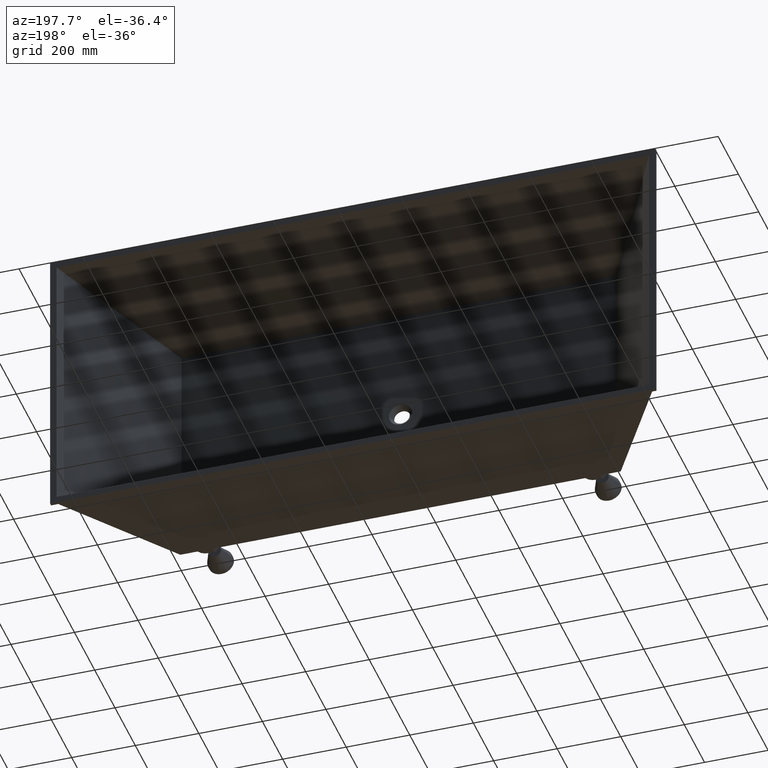
[diagram: clean part render]
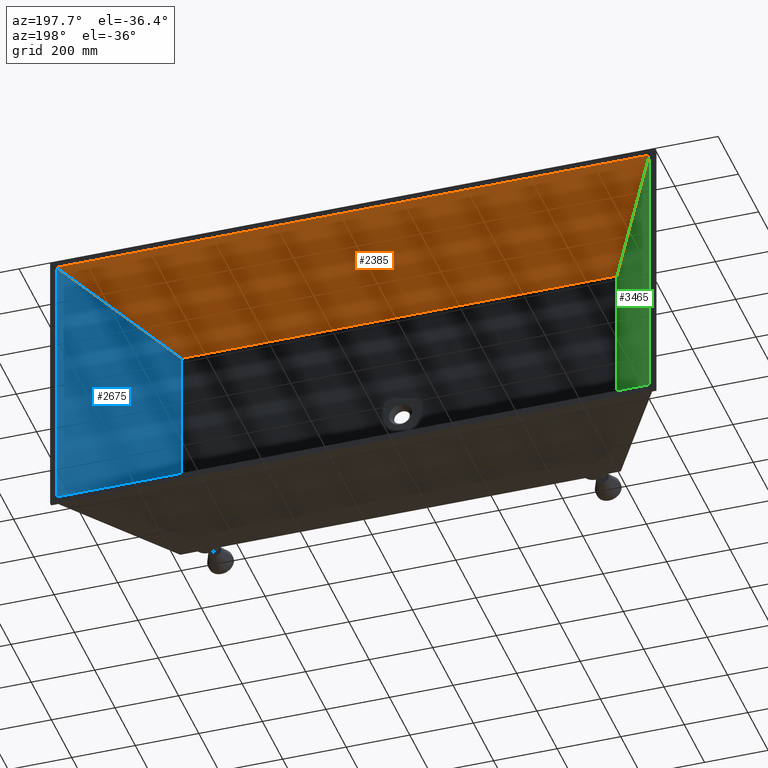
[diagram: same view with three faces highlighted in distinct colors, each labeled with its STEP entity id]
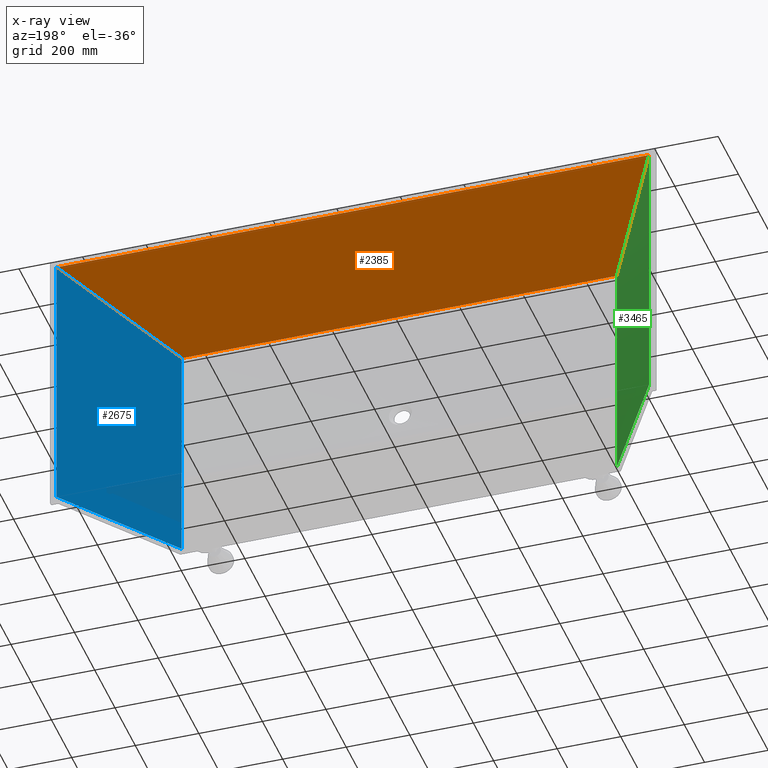
[diagram: x-ray of the same camera — body ghosted, the three highlighted faces saturated]
A machine part, auxiliary view with three faces highlighted in distinct colors.
The next image is the same camera in x-ray (body ghosted, the three faces saturated) — at least one of them is partly hidden behind the body in this view.
Their STEP definitions:

[orange] entity #2385 — the highlighted planar face has unit normal (0, -0.1564, 0.9877).
#38 = CARTESIAN_POINT ( 'NONE',  ( 247.5000000000000600, -457.9999999999999400, -72.49999999999995700 ) ) ;
#152 = VERTEX_POINT ( 'NONE', #38 ) ;
#225 = VECTOR ( 'NONE', #8233, 1000.000000000000000 ) ;
#293 = CARTESIAN_POINT ( 'NONE',  ( 1617.500000000000200, -457.9999999999999400, -72.49999999999995700 ) ) ;
#428 = LINE ( 'NONE', #293, #225 ) ;
#1085 = EDGE_CURVE ( 'NONE', #3806, #3351, #2160, .T. ) ;
#1226 = EDGE_CURVE ( 'NONE', #3806, #152, #1550, .T. ) ;
#1254 = CARTESIAN_POINT ( 'NONE',  ( 0.0000000000000000000, 0.0000000000000000000, 0.0000000000000000000 ) ) ;
#1550 = LINE ( 'NONE', #1254, #6712 ) ;
#1739 = VECTOR ( 'NONE', #5583, 1000.000000000000100 ) ;
#2160 = LINE ( 'NONE', #5485, #2559 ) ;
#2385 = ADVANCED_FACE ( 'NONE', ( #5006 ), #6603, .F. ) ;
#2498 = ORIENTED_EDGE ( 'NONE', *, *, #6522, .F. ) ;
#2559 = VECTOR ( 'NONE', #4074, 1000.000000000000000 ) ;
#2729 = EDGE_LOOP ( 'NONE', ( #6454, #8451, #6614, #2498 ) ) ;
#3286 = EDGE_CURVE ( 'NONE', #3351, #4926, #5121, .T. ) ;
#3351 = VERTEX_POINT ( 'NONE', #4567 ) ;
#3533 = CARTESIAN_POINT ( 'NONE',  ( 1617.500000000000200, -457.9999999999999400, -72.49999999999995700 ) ) ;
#3806 = VERTEX_POINT ( 'NONE', #5665 ) ;
#4074 = DIRECTION ( 'NONE',  ( 1.000000000000000000, 0.0000000000000000000, 0.0000000000000000000 ) ) ;
#4554 = CARTESIAN_POINT ( 'NONE',  ( 1865.000000000000000, 0.0000000000000000000, 0.0000000000000000000 ) ) ;
#4567 = CARTESIAN_POINT ( 'NONE',  ( 1865.000000000000000, 0.0000000000000000000, 0.0000000000000000000 ) ) ;
#4894 = DIRECTION ( 'NONE',  ( 0.4708723949247487500, -0.8713517449516556800, -0.1379323177052292300 ) ) ;
#4926 = VERTEX_POINT ( 'NONE', #3533 ) ;
#5006 = FACE_OUTER_BOUND ( 'NONE', #2729, .T. ) ;
#5121 = LINE ( 'NONE', #4554, #1739 ) ;
#5485 = CARTESIAN_POINT ( 'NONE',  ( 0.0000000000000000000, 0.0000000000000000000, 0.0000000000000000000 ) ) ;
#5583 = DIRECTION ( 'NONE',  ( -0.4708723949247482500, -0.8713517449516559000, -0.1379323177052292600 ) ) ;
#5665 = CARTESIAN_POINT ( 'NONE',  ( 0.0000000000000000000, 0.0000000000000000000, 0.0000000000000000000 ) ) ;
#6335 = AXIS2_PLACEMENT_3D ( 'NONE', #6532, #6635, #6661 ) ;
#6454 = ORIENTED_EDGE ( 'NONE', *, *, #1226, .F. ) ;
#6522 = EDGE_CURVE ( 'NONE', #152, #4926, #428, .T. ) ;
#6532 = CARTESIAN_POINT ( 'NONE',  ( 247.5000000000000600, -457.9999999999999400, -72.49999999999995700 ) ) ;
#6603 = PLANE ( 'NONE',  #6335 ) ;
#6614 = ORIENTED_EDGE ( 'NONE', *, *, #3286, .T. ) ;
#6635 = DIRECTION ( 'NONE',  ( 0.0000000000000000000, -0.1563501583167087900, 0.9877016897800369200 ) ) ;
#6661 = DIRECTION ( 'NONE',  ( 0.0000000000000000000, -0.9877016897800369200, -0.1563501583167087900 ) ) ;
#6712 = VECTOR ( 'NONE', #4894, 1000.000000000000100 ) ;
#8233 = DIRECTION ( 'NONE',  ( 1.000000000000000000, -0.0000000000000000000, -0.0000000000000000000 ) ) ;
#8451 = ORIENTED_EDGE ( 'NONE', *, *, #1085, .T. ) ;

[blue] entity #2675 — the highlighted planar face has unit normal (0.8798, -0.4754, 0).
#654 = LINE ( 'NONE', #8546, #4106 ) ;
#1432 = FACE_OUTER_BOUND ( 'NONE', #6167, .T. ) ;
#1739 = VECTOR ( 'NONE', #5583, 1000.000000000000100 ) ;
#1755 = ORIENTED_EDGE ( 'NONE', *, *, #7860, .T. ) ;
#1933 = CARTESIAN_POINT ( 'NONE',  ( 1617.500000000000200, -457.9999999999999400, -72.49999999999995700 ) ) ;
#2140 = DIRECTION ( 'NONE',  ( 0.0000000000000000000, 0.0000000000000000000, -1.000000000000000000 ) ) ;
#2586 = CARTESIAN_POINT ( 'NONE',  ( 1864.999999999999800, 0.0000000000000000000, -855.0000000000000000 ) ) ;
#2629 = DIRECTION ( 'NONE',  ( -0.4708723949247478600, -0.8713517449516560200, 0.1379323177052294000 ) ) ;
#2675 = ADVANCED_FACE ( 'NONE', ( #1432 ), #7652, .F. ) ;
#2954 = EDGE_CURVE ( 'NONE', #3351, #7154, #654, .T. ) ;
#3286 = EDGE_CURVE ( 'NONE', #3351, #4926, #5121, .T. ) ;
#3351 = VERTEX_POINT ( 'NONE', #4567 ) ;
#3533 = CARTESIAN_POINT ( 'NONE',  ( 1617.500000000000200, -457.9999999999999400, -72.49999999999995700 ) ) ;
#3890 = VECTOR ( 'NONE', #2629, 1000.000000000000200 ) ;
#4106 = VECTOR ( 'NONE', #4598, 1000.000000000000000 ) ;
#4554 = CARTESIAN_POINT ( 'NONE',  ( 1865.000000000000000, 0.0000000000000000000, 0.0000000000000000000 ) ) ;
#4567 = CARTESIAN_POINT ( 'NONE',  ( 1865.000000000000000, 0.0000000000000000000, 0.0000000000000000000 ) ) ;
#4598 = DIRECTION ( 'NONE',  ( -2.597012923099781200E-016, 0.0000000000000000000, -1.000000000000000000 ) ) ;
#4786 = VERTEX_POINT ( 'NONE', #6759 ) ;
#4832 = ORIENTED_EDGE ( 'NONE', *, *, #6797, .F. ) ;
#4859 = VECTOR ( 'NONE', #2140, 1000.000000000000000 ) ;
#4926 = VERTEX_POINT ( 'NONE', #3533 ) ;
#5121 = LINE ( 'NONE', #4554, #1739 ) ;
#5583 = DIRECTION ( 'NONE',  ( -0.4708723949247482500, -0.8713517449516559000, -0.1379323177052292600 ) ) ;
#5744 = LINE ( 'NONE', #2586, #3890 ) ;
#5989 = DIRECTION ( 'NONE',  ( 0.4754165898032040600, 0.8797608005247176100, 0.0000000000000000000 ) ) ;
#6167 = EDGE_LOOP ( 'NONE', ( #6957, #8084, #1755, #4832 ) ) ;
#6468 = LINE ( 'NONE', #1933, #4859 ) ;
#6759 = CARTESIAN_POINT ( 'NONE',  ( 1617.500000000000200, -457.9999999999999400, -782.5000000000000000 ) ) ;
#6797 = EDGE_CURVE ( 'NONE', #4926, #4786, #6468, .T. ) ;
#6928 = AXIS2_PLACEMENT_3D ( 'NONE', #8379, #7890, #5989 ) ;
#6957 = ORIENTED_EDGE ( 'NONE', *, *, #3286, .F. ) ;
#7154 = VERTEX_POINT ( 'NONE', #8352 ) ;
#7652 = PLANE ( 'NONE',  #6928 ) ;
#7860 = EDGE_CURVE ( 'NONE', #7154, #4786, #5744, .T. ) ;
#7890 = DIRECTION ( 'NONE',  ( 0.8797608005247176100, -0.4754165898032040600, 0.0000000000000000000 ) ) ;
#8084 = ORIENTED_EDGE ( 'NONE', *, *, #2954, .T. ) ;
#8352 = CARTESIAN_POINT ( 'NONE',  ( 1864.999999999998900, 0.0000000000000000000, -855.0000000000000000 ) ) ;
#8379 = CARTESIAN_POINT ( 'NONE',  ( 1617.500000000000200, -457.9999999999999400, -72.49999999999995700 ) ) ;
#8546 = CARTESIAN_POINT ( 'NONE',  ( 1865.000000000000000, 0.0000000000000000000, 0.0000000000000000000 ) ) ;

[green] entity #3465 — the highlighted planar face has unit normal (-0.8798, -0.4754, 0).
#5 = DIRECTION ( 'NONE',  ( -0.8797608005247173900, -0.4754165898032045600, 0.0000000000000000000 ) ) ;
#26 = DIRECTION ( 'NONE',  ( 0.4754165898032045000, -0.8797608005247172800, 0.0000000000000000000 ) ) ;
#28 = EDGE_LOOP ( 'NONE', ( #5533, #1013, #5609, #3456 ) ) ;
#38 = CARTESIAN_POINT ( 'NONE',  ( 247.5000000000000600, -457.9999999999999400, -72.49999999999995700 ) ) ;
#152 = VERTEX_POINT ( 'NONE', #38 ) ;
#662 = LINE ( 'NONE', #2884, #5786 ) ;
#696 = EDGE_CURVE ( 'NONE', #4710, #6873, #662, .T. ) ;
#1013 = ORIENTED_EDGE ( 'NONE', *, *, #4772, .T. ) ;
#1226 = EDGE_CURVE ( 'NONE', #3806, #152, #1550, .T. ) ;
#1254 = CARTESIAN_POINT ( 'NONE',  ( 0.0000000000000000000, 0.0000000000000000000, 0.0000000000000000000 ) ) ;
#1387 = CARTESIAN_POINT ( 'NONE',  ( 247.5000000000001700, -457.9999999999999400, -782.5000000000000000 ) ) ;
#1550 = LINE ( 'NONE', #1254, #6712 ) ;
#1628 = PLANE ( 'NONE',  #2089 ) ;
#2089 = AXIS2_PLACEMENT_3D ( 'NONE', #7568, #5, #26 ) ;
#2879 = CARTESIAN_POINT ( 'NONE',  ( 0.0000000000000000000, 0.0000000000000000000, -855.0000000000000000 ) ) ;
#2880 = DIRECTION ( 'NONE',  ( 0.4708723949247486900, -0.8713517449516555700, 0.1379323177052295700 ) ) ;
#2884 = CARTESIAN_POINT ( 'NONE',  ( 0.0000000000000000000, 0.0000000000000000000, -855.0000000000000000 ) ) ;
#3456 = ORIENTED_EDGE ( 'NONE', *, *, #4892, .F. ) ;
#3465 = ADVANCED_FACE ( 'NONE', ( #8232 ), #1628, .F. ) ;
#3477 = VECTOR ( 'NONE', #7747, 1000.000000000000000 ) ;
#3806 = VERTEX_POINT ( 'NONE', #5665 ) ;
#3835 = CARTESIAN_POINT ( 'NONE',  ( 247.5000000000001700, -457.9999999999999400, -72.49999999999995700 ) ) ;
#3862 = DIRECTION ( 'NONE',  ( -0.0000000000000000000, -0.0000000000000000000, 1.000000000000000000 ) ) ;
#4710 = VERTEX_POINT ( 'NONE', #2879 ) ;
#4772 = EDGE_CURVE ( 'NONE', #4710, #3806, #6691, .T. ) ;
#4871 = VECTOR ( 'NONE', #3862, 1000.000000000000000 ) ;
#4892 = EDGE_CURVE ( 'NONE', #6873, #152, #8226, .T. ) ;
#4894 = DIRECTION ( 'NONE',  ( 0.4708723949247487500, -0.8713517449516556800, -0.1379323177052292300 ) ) ;
#5533 = ORIENTED_EDGE ( 'NONE', *, *, #696, .F. ) ;
#5609 = ORIENTED_EDGE ( 'NONE', *, *, #1226, .T. ) ;
#5665 = CARTESIAN_POINT ( 'NONE',  ( 0.0000000000000000000, 0.0000000000000000000, 0.0000000000000000000 ) ) ;
#5786 = VECTOR ( 'NONE', #2880, 1000.000000000000200 ) ;
#6691 = LINE ( 'NONE', #7773, #3477 ) ;
#6712 = VECTOR ( 'NONE', #4894, 1000.000000000000100 ) ;
#6873 = VERTEX_POINT ( 'NONE', #1387 ) ;
#7568 = CARTESIAN_POINT ( 'NONE',  ( 247.5000000000001700, -457.9999999999999400, -782.5000000000000000 ) ) ;
#7747 = DIRECTION ( 'NONE',  ( -0.0000000000000000000, -0.0000000000000000000, 1.000000000000000000 ) ) ;
#7773 = CARTESIAN_POINT ( 'NONE',  ( 0.0000000000000000000, 0.0000000000000000000, 0.0000000000000000000 ) ) ;
#8226 = LINE ( 'NONE', #3835, #4871 ) ;
#8232 = FACE_OUTER_BOUND ( 'NONE', #28, .T. ) ;